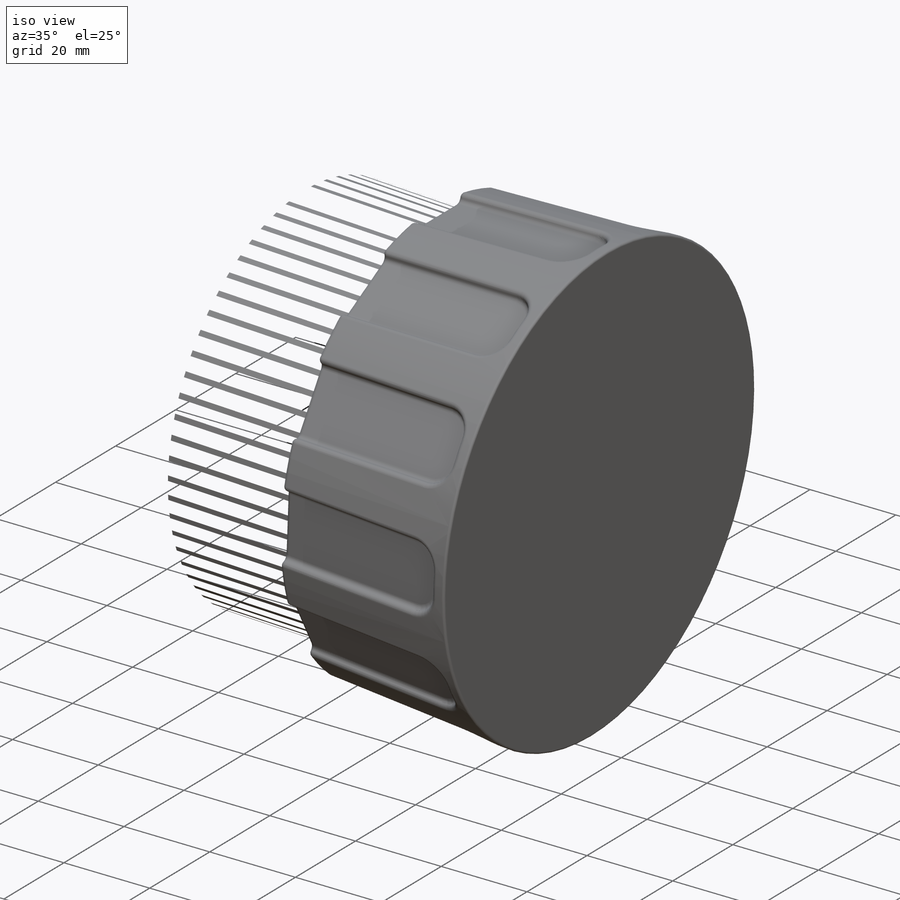
[diagram: iso view]
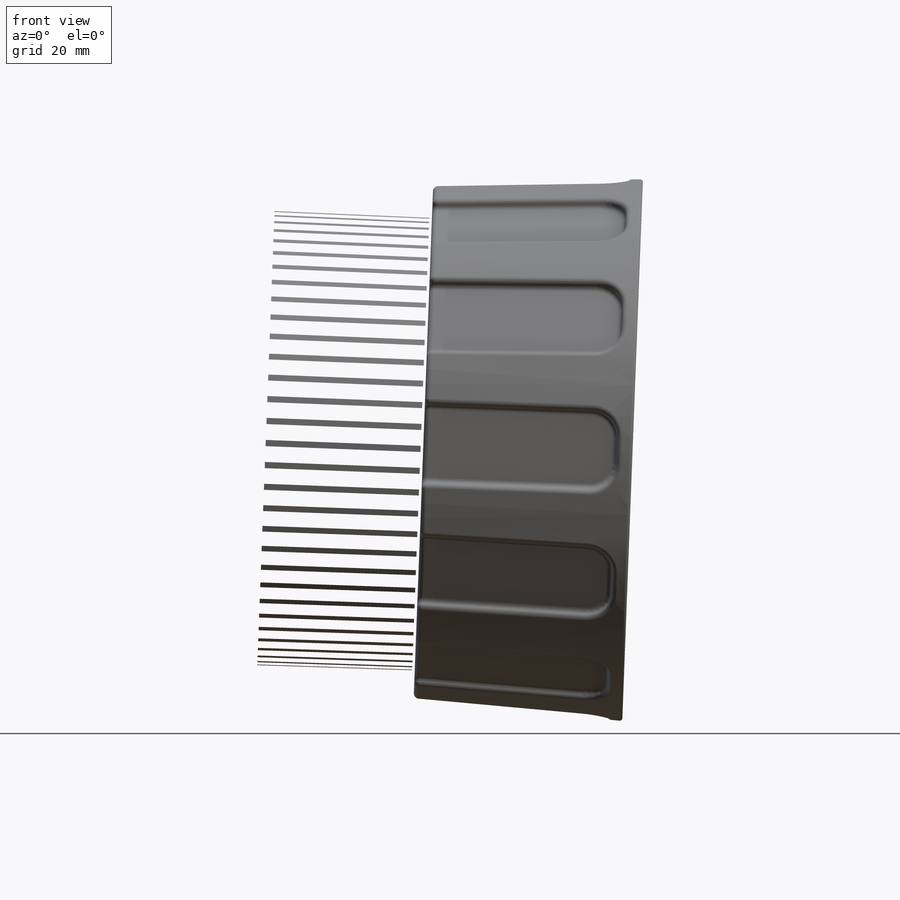
[diagram: front view]
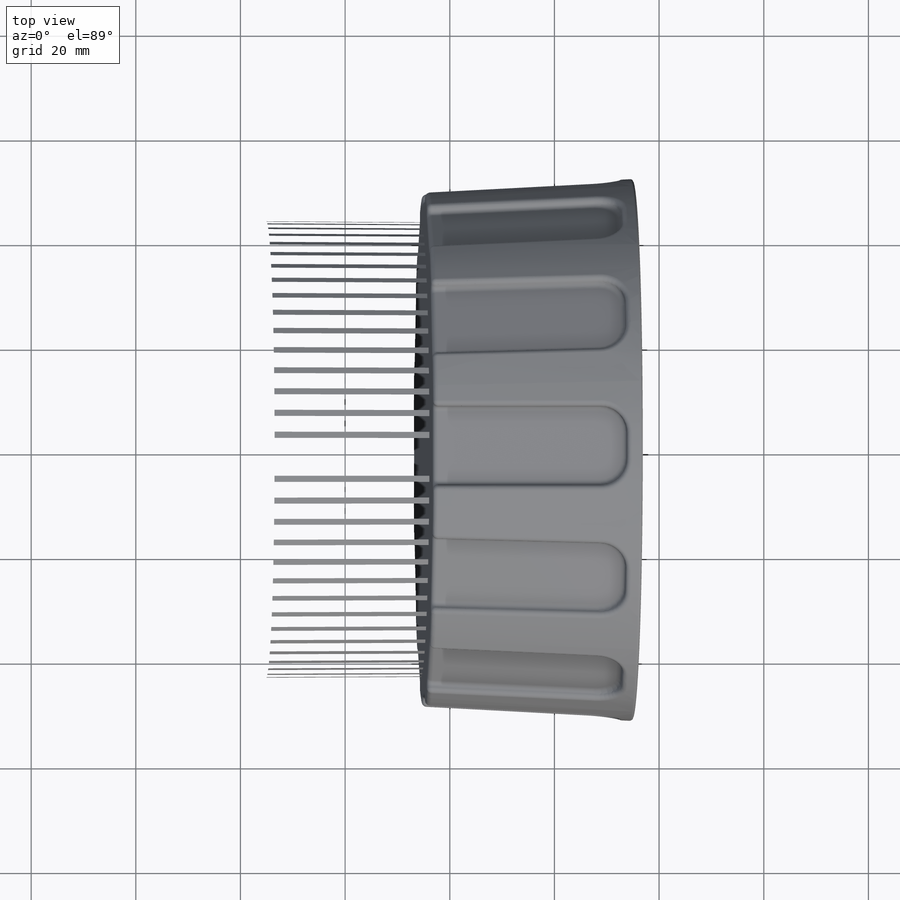
[diagram: top view]
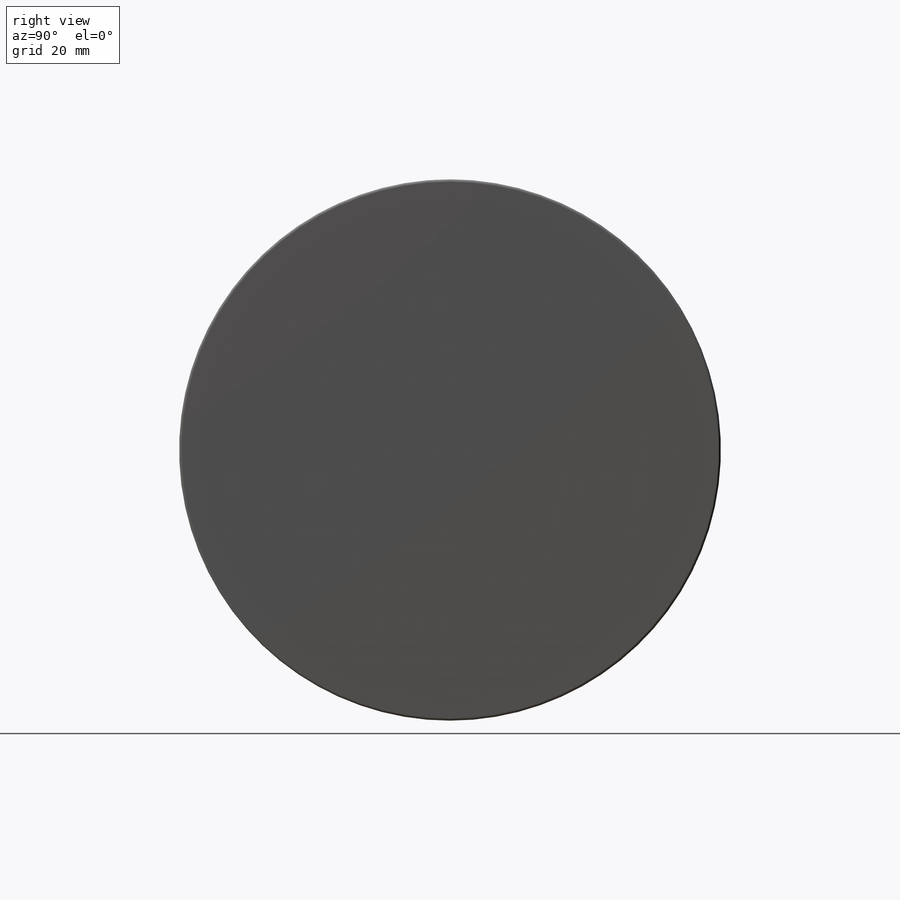
[diagram: right view]
SOLIDWORKS PART (.sldprt)
format: sldprt  version: not decoded by parser v0  size: 32,381,952 bytes
history: native  units: mm
features: fillet x88, sketch x77, extrude x21, cut_extrude x17, mirror x10, plane x8, boolean_combine x6, pattern_circular x3, revolve x2, shell x2, material x1, cut_revolve x1, delete_body x1, surface_op x1, pattern_linear x1 + 3 further entries (+13 scaffold rows collapsed; 2 parser-record rows omitted)
feature tree (257):
  scaffold x13  (default folders/planes/origin — collapsed)
  material  "Material <not specified>"
  sketch  "Sketch1"
  sketch  "Sketch2"
  sketch  "Sketch4"
  parser-record x2  (decoder bookkeeping rows leaked as tree rows — omitted from the tree; the rows remain in map.json)
  sketch  "Sketch5"
  plane  "Plane1"
  sketch  "Sketch6"
  sketch  "Sketch7"
  plane  "Plane2"
  sketch  "Sketch8"
  sketch  "3DSketch1"
  sketch  "Sketch9"
  sketch  "3DSketch2"
  mirror  "Mirror1"
  sketch  "Sketch15"  dims[D1=0.0mm]
  sketch  "Sketch10"  dims[D1=12.0mm]
  extrude  "Boss-Extrude2"  Depth=20mm
  fillet  "Fillet1"  Radius=10mm
  sketch  "Sketch12"  dims[D1=8.0mm]
  cut_extrude  "Cut-Extrude2"  [1 undecoded]
  sketch  "Sketch13"  dims[D1=12.0mm]
  fillet  "Fillet4"  Radius=0.5mm
  sketch  "Sketch14"  dims[D1=12.0mm]
  sketch  "Sketch16"
  extrude  "Boss-Extrude3"  Depth=12mm
  sketch  "Sketch17"  dims[D1=5.0mm]
  extrude  "Boss-Extrude4"  Depth=27mm
  sketch  "Sketch20"  dims[D1=5.0mm]
  extrude  "Boss-Extrude7"  Depth=15mm
  sketch  "Sketch18"  dims[D1=8.0mm]
  extrude  "Boss-Extrude5"  Depth=12mm
  fillet  "Fillet9"  Radius=8mm
  fillet  "Fillet10"  Radius=0.5mm
  fillet  "Fillet11"  Radius=5mm
  sketch  "Sketch19"  dims[D1=10.0mm]
  extrude  "Boss-Extrude6"  [1 undecoded]
  fillet  "Fillet22"  Radius=5mm
  fillet  "Fillet13"  Radius=5mm
  fillet  "Fillet14"  Radius=2mm
  fillet  "Fillet15"  Radius=0.2mm
  fillet  "Fillet16"  Radius=1.5mm
  sketch  "Sketch56"
  extrude  "Boss-Extrude18"  [1 undecoded]
  sketch  "Sketch21"
  cut_revolve  "Cut-Revolve1"  Angle=360deg
  fillet  "Fillet20"  Radius=1.5mm
  sketch  "Sketch22"  dims[D1=0.0mm]
  extrude  "Boss-Extrude8"  Depth=15mm
  sketch  "Sketch24"
  delete_body  "Body-Delete1"
  sketch  "Sketch25"  dims[D1=0.0mm]
  sketch  "Sketch23"  dims[D1=0.0mm]
  extrude  "Boss-Extrude9"  Depth=40mm
  sketch  "Sketch26"  dims[D1=15.0mm D2=5.0mm]
  sketch  "Sketch27"
  cut_extrude  "Cut-Extrude3"  Depth=3mm
  fillet  "Fillet23"  Radius=5mm
  fillet  "Fillet24"  Radius=1mm
  fillet  "Fillet25"  Radius=1mm
  pattern_circular  "CirPattern1"  Count=12 Angle=360deg
  fillet  "Fillet26"  Radius=0.5mm
  fillet  "Fillet27"  Radius=0.5mm
  fillet  "Fillet28"  Radius=0.5mm
  sketch  "Sketch28"
  revolve  "Revolve1"  Angle=360deg
  sketch  "Sketch30"  dims[D1=2.0mm D2=2.0mm]
  sketch  "Sketch31"
  cut_extrude  "Cut-Extrude4"  [1 undecoded]
  fillet  "Fillet30"  Radius=0.5mm
  pattern_circular  "CirPattern2"  Count=65 Angle=360deg
  fillet  "Fillet31"  Radius=0.5mm
  sketch  "Sketch32"  dims[D1=10.0mm D2=5.0mm]
  revolve  "Revolve2"  Angle=360deg
  fillet  "Fillet32"  Radius=0.5mm
  fillet  "Fillet33"  Radius=0.5mm
  fillet  "Fillet35"  Radius=1mm
  fillet  "Fillet36"  Radius=0.5mm
  fillet  "Fillet37"  Radius=0.5mm
  sketch  "Sketch33"
  sketch  "Sketch34"  dims[D1=7.0mm D2=3.0mm]
  cut_extrude  "Cut-Extrude5"  Depth=5mm
  fillet  "Fillet38"  Radius=3mm
  fillet  "Fillet39"  Radius=1.5mm
  fillet  "Fillet40"  Radius=2mm
  pattern_circular  "CirPattern3"  Count=12 Angle=360deg
  fillet  "Fillet41"  Radius=1mm
  sketch  "Sketch35"  dims[D1=2.0mm]
  extrude  "Boss-Extrude10"  Depth=6mm
  sketch  "Sketch36"  dims[D1=6.0mm]
  extrude  "Boss-Extrude11"  Depth=15mm
  sketch  "Sketch37"  dims[D2=1.0mm D3=0.3mm D4=0.3mm]
  cut_extrude  "Cut-Extrude6"  [1 undecoded]
  fillet  "Fillet42"  Radius=0.5mm
  plane  "Plane4"  Offset=45mm
  sketch  "Sketch38"  dims[D1=70.0mm D2=40.0mm D3=~0.748088deg]
  extrude  "Boss-Extrude12"  Depth=15mm
  fillet  "Fillet43"  Radius=10mm
  mirror  "Mirror4"
  fillet  "Fillet44"  Radius=5mm
  fillet  "Fillet45"  Radius=5mm
  sketch  "Sketch39"  dims[D1=1.5mm]
  cut_extrude  "Cut-Extrude7"  Depth=1.5mm
  mirror  "Mirror5"
  fillet  "Fillet46"  Radius=2mm
  fillet  "Fillet47"  Radius=1mm
  sketch  "Sketch40"
  extrude  "Boss-Extrude16"  Depth=45mm
  fillet  "Fillet48"  Radius=20mm
  fillet  "Fillet49"  Radius=20mm
  fillet  "Fillet50"  Radius=20mm
  fillet  "Fillet51"  Radius=3mm
  fillet  "Fillet53"  Radius=3mm
  sketch  "Sketch41"
  cut_extrude  "Cut-Extrude8"  [1 undecoded]
  fillet  "Fillet54"  Radius=3mm
  sketch  "Sketch42"  dims[c1.D1=10.0mm c1.D2=10.0mm c2.D1=1.0mm c3.D1=4.0mm]
  boolean_combine  "Combine1"
  fillet  "Fillet64"  Radius=1mm
  fillet  "Fillet65"  Radius=1mm
  sketch  "Sketch43"  dims[c1.D1=3.0mm c1.D2=4.0mm c1.D3=4.0mm c1.D4=1.5mm c2.D1=3.0mm c2.D2=3.0mm c2.D3=3.0mm c2.D4=3.0mm c3.D1=3.0mm]
  fillet  "Fillet55"  Radius=1.5mm
  fillet  "Fillet56"  Radius=1mm
  fillet  "Fillet60"  Radius=10mm
  fillet  "Fillet61"  Radius=1mm
  sketch  "Sketch45"  dims[c1.D1=20.0mm c1.D2=10.0mm c2.D1=1.0mm c3.D1=4.0mm]
  boolean_combine  "Combine2"
  fillet  "Fillet66"  Radius=1.5mm
  fillet  "Fillet67"  Radius=1mm
  fillet  "Fillet68"  Radius=1.5mm
  plane  "Plane5"  Offset=60mm
  sketch  "Sketch46"  dims[D2=5.0mm D3=10.0mm D4=0.4mm D5=0.4mm D1=17.0]
  cut_extrude  "Cut-Extrude9"  Depth=1mm
  mirror  "Mirror6"
  sketch  "Sketch47"  dims[D1=5.0mm D2=5.0mm D4=0.4mm D5=0.4mm D6=0.4mm D7=0.4mm D3=21.0]
  cut_extrude  "Cut-Extrude10"  Depth=1mm
  mirror  "Mirror7"
  sketch  "Sketch48"  dims[D1=5.0mm D2=5.0mm]
  extrude  "Boss-Extrude17"  Depth=15mm
  fillet  "Fillet69"  Radius=5mm
  plane  "Plane6"  Offset=45mm
  sketch  "Sketch49"  dims[D1=15.0mm D2=25.0mm]
  cut_extrude  "Cut-Extrude11"  Depth=2mm
  plane  "Plane7"  Offset=45mm
  sketch  "Sketch50"  dims[D1=0.0mm]
  cut_extrude  "Cut-Extrude12"  Depth=2mm
  sketch  "Sketch53"  dims[D1=0.0mm D2=2.0mm D5=4.0mm D6=1.0mm D7=5.0mm]
  fillet  "Fillet70"  Radius=1mm
  fillet  "Fillet71"  Radius=1mm
  mirror  "Mirror9"
  fillet  "Fillet72"  Radius=1mm
  sketch  "Sketch54"  dims[D1=7.0mm D4=3.0mm D5=3.0mm D6=1.0mm D7=1.0mm D2=5.0 D3=3.0]
  cut_extrude  "Cut-Extrude13"  Depth=12mm
  mirror  "Mirror10"
  sketch  "Sketch55"  dims[c1.D1=1.0mm c1.D2=1.0mm c2.D1=0.0mm c3.D1=1.0mm]
  boolean_combine  "Combine3"
  fillet  "Fillet73"  Radius=1mm
  fillet  "Fillet74"  Radius=0.25mm
  sketch  "Sketch58"  dims[D1=10.0mm D2=25.0mm D3=25.0mm D4=25.0mm D5=8.0mm]
  extrude  "Boss-Extrude20"  Depth=110mm
  fillet  "Fillet78"  Radius=20mm
  sketch  "Sketch60"  dims[D1=0.0mm]
  extrude  "Boss-Extrude21"  Depth=110mm
  fillet  "Fillet79"  Radius=40mm
  fillet  "Fillet80"  Radius=20mm
  fillet  "Fillet81"  Radius=10mm
  fillet  "Fillet82"  Radius=5mm
  sketch  "Sketch61"  dims[D1=8.0mm]
  cut_extrude  "Cut-Extrude15"  [1 undecoded]
  fillet  "Fillet83"  Radius=3mm
  sketch  "Sketch62"  dims[D1=15.0mm D2=5.0mm D3=20.0mm D4=20.0mm D5=15.0mm]
  extrude  "Boss-Extrude22"  Depth=110mm
  fillet  "Fillet84"  Radius=40mm
  fillet  "Fillet85"  Radius=20mm
  fillet  "Fillet88"  Radius=13mm
  sketch  "Sketch64"  dims[D1=5.0mm]
  extrude  "Boss-Extrude23"  Depth=90mm
  fillet  "Fillet91"  Radius=10mm
  fillet  "Fillet102"  Radius=8mm
  fillet  "Fillet99"  Radius=3mm
  fillet  "Fillet100"  Radius=2mm
  fillet  "Fillet103"  Radius=2mm
  fillet  "Fillet104"  Radius=2mm
  sketch  "Sketch65"
  plane  "Plane8"
  sketch  "Sketch66"
  sketch  "Sketch67"  dims[c1.D1=1.0mm c1.D2=1.0mm c1.D3=1.0mm c1.D4=1.0mm c2.D1=1.0mm c3.D1=3.0mm c4.D1=3.0mm c5.D1=3.0mm c6.D1=3.0mm c7.D1=3.0mm]
  boolean_combine  "Combine4"
  boolean_combine  "Combine5"
  fillet  "Fillet107"  Radius=0.5mm
  fillet  "Fillet108"  Radius=0.5mm
  sketch  "Sketch68"
  surface_op  "Surface-Extrude1"
  sketch  "Sketch69"
  extrude  "Boss-Extrude24"  Depth=95mm
  fillet  "Fillet109"  Radius=20mm
  fillet  "Fillet112"  Radius=20mm
  fillet  "Fillet113"  Radius=15mm
  shell  "Shell1"  Thickness=3mm
  fillet  "Fillet114"  Radius=2mm
  sketch  "Sketch70"  dims[D1=1.0mm D2=1.0mm D3=1.0mm D4=1.0mm]
  cut_extrude  "Cut-Extrude16"  [1 undecoded]
  fillet  "Fillet115"  Radius=1mm
  fillet  "Fillet116"  Radius=1mm
  sketch  "Sketch71"  dims[c1.D1=10.0mm c1.D2=5.0mm c2.D1=0.0mm c2.D2=2.0mm]
  "Extrude-Thin2"
  fillet  "Fillet117"  Radius=5mm
  fillet  "Fillet118"  Radius=1mm
  shell  "Draft3"  [1 undecoded]
  fillet  "Fillet120"  Radius=15mm
  fillet  "Fillet121"  Radius=3mm
  plane  "Plane9"  Offset=1mm
  sketch  "Sketch74"  dims[D1=0.0mm]
  sketch  "Sketch72"  dims[D1=25.0mm]
  "Extrude-Thin3"
  sketch  "Sketch75"  dims[D1=0.0mm]
  pattern_linear  "LPattern2"  Count1=21 Count2=1 Spacing1=1.5mm Spacing2=10mm
  cut_extrude  "Cut-Extrude17"  [1 undecoded]
  boolean_combine  "Combine8"
  sketch  "Sketch76"
  cut_extrude  "Cut-Extrude18"  [1 undecoded]
  mirror  "Mirror11"
  sketch  "Sketch77"
  sketch  "Sketch78"  dims[D3=5.0mm D1=60.0mm D2=20.0mm]
  "Extrude-Thin4"
  mirror  "Mirror12"
  fillet  "Fillet122"  Radius=8mm
  fillet  "Fillet123"  Radius=1mm
  sketch  "Sketch79"  dims[D1=0.0mm]
  extrude  "Boss-Extrude25"  Depth=3.5mm
  mirror  "Mirror14"
  fillet  "Fillet124"  Radius=1mm
  sketch  "Sketch80"
  sketch  "Sketch81"  dims[D2=5.0mm D1=20.0mm]
  cut_extrude  "Cut-Extrude19"  [1 undecoded]
  sketch  "Sketch82"  dims[D1=0.3mm]
  extrude  "Boss-Extrude26"  Depth=30mm
  fillet  "Fillet125"  Radius=4mm
  sketch  "Sketch83"  dims[D1=8.0mm]
  fillet  "Fillet127"  Radius=0.5mm
  fillet  "Fillet128"  Radius=0.5mm
  sketch  "Sketch84"
  sketch  "Sketch85"
decode coverage: 171 of 230 modeling features carry decoded parameters; 3 rows unclassified (native names shown)
note: ~ marks probable driven/reference dimensions
note: 12 parameter values undecoded
summary: no parameter record found for 12 features
note: suppression state not decoded; provenance and decode notes live in map.json
